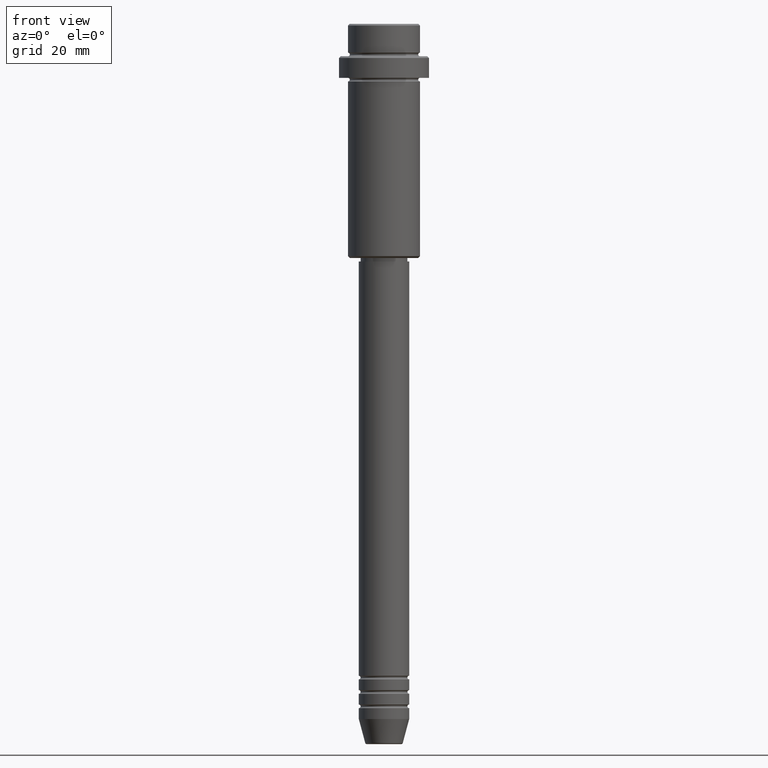
[diagram: clean part render]
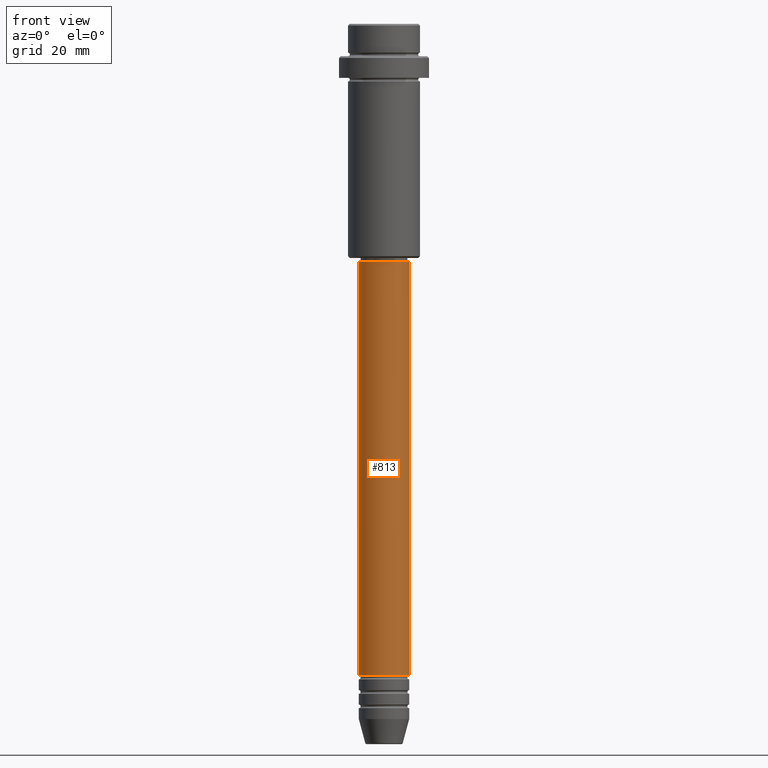
[diagram: same view with one face highlighted and labeled with its STEP entity id]
A machine part, front view. The second image highlights one B-rep face of the part: STEP entity #813.
In plain terms, the highlighted cylindrical surface (edge-blend (fillet) strip) has radius 7 mm, axis along (-0, -0, 1).
Its self-contained STEP definition (entity closure, byte-faithful):
#54 = VERTEX_POINT ( 'NONE', #281 ) ;
#79 = LINE ( 'NONE', #83, #200 ) ;
#83 = CARTESIAN_POINT ( 'NONE',  ( 7.000000000000000000, 0.000000000000000000, 0.000000000000000000 ) ) ;
#122 = VERTEX_POINT ( 'NONE', #771 ) ;
#154 = CARTESIAN_POINT ( 'NONE',  ( 0.000000000000000000, 0.000000000000000000, 0.000000000000000000 ) ) ;
#157 = CIRCLE ( 'NONE', #1082, 7.000000000000000000 ) ;
#200 = VECTOR ( 'NONE', #291, 1000.000000000000000 ) ;
#211 = ORIENTED_EDGE ( 'NONE', *, *, #630, .F. ) ;
#223 = CARTESIAN_POINT ( 'NONE',  ( 7.000000000000000000, 0.000000000000000000, -66.00000000000000000 ) ) ;
#235 = DIRECTION ( 'NONE',  ( 1.000000000000000000, 0.000000000000000000, 0.000000000000000000 ) ) ;
#279 = DIRECTION ( 'NONE',  ( 1.000000000000000000, 0.000000000000000000, 0.000000000000000000 ) ) ;
#281 = CARTESIAN_POINT ( 'NONE',  ( -7.000000000000000000, 8.572527594031473190E-16, -180.9999999999998863 ) ) ;
#291 = DIRECTION ( 'NONE',  ( -0.000000000000000000, -0.000000000000000000, 1.000000000000000000 ) ) ;
#318 = AXIS2_PLACEMENT_3D ( 'NONE', #154, #1009, #596 ) ;
#364 = DIRECTION ( 'NONE',  ( -0.000000000000000000, -0.000000000000000000, 1.000000000000000000 ) ) ;
#383 = CARTESIAN_POINT ( 'NONE',  ( 0.000000000000000000, 0.000000000000000000, -180.9999999999998863 ) ) ;
#429 = CARTESIAN_POINT ( 'NONE',  ( -7.000000000000000000, 8.572527594031473190E-16, 0.000000000000000000 ) ) ;
#434 = AXIS2_PLACEMENT_3D ( 'NONE', #383, #1268, #279 ) ;
#449 = EDGE_CURVE ( 'NONE', #1139, #1087, #79, .T. ) ;
#529 = CIRCLE ( 'NONE', #434, 7.000000000000000000 ) ;
#539 = LINE ( 'NONE', #429, #730 ) ;
#596 = DIRECTION ( 'NONE',  ( 1.000000000000000000, 0.000000000000000000, 0.000000000000000000 ) ) ;
#630 = EDGE_CURVE ( 'NONE', #54, #122, #539, .T. ) ;
#706 = CYLINDRICAL_SURFACE ( 'NONE', #318, 7.000000000000000000 ) ;
#730 = VECTOR ( 'NONE', #1098, 1000.000000000000000 ) ;
#771 = CARTESIAN_POINT ( 'NONE',  ( -7.000000000000000000, 8.572527594031473190E-16, -66.00000000000000000 ) ) ;
#788 = EDGE_CURVE ( 'NONE', #122, #1087, #157, .T. ) ;
#813 = ADVANCED_FACE ( 'NONE', ( #1140 ), #706, .T. ) ;
#878 = ORIENTED_EDGE ( 'NONE', *, *, #928, .T. ) ;
#928 = EDGE_CURVE ( 'NONE', #54, #1139, #529, .T. ) ;
#1009 = DIRECTION ( 'NONE',  ( -0.000000000000000000, -0.000000000000000000, 1.000000000000000000 ) ) ;
#1043 = CARTESIAN_POINT ( 'NONE',  ( 0.000000000000000000, 0.000000000000000000, -66.00000000000000000 ) ) ;
#1082 = AXIS2_PLACEMENT_3D ( 'NONE', #1043, #364, #235 ) ;
#1087 = VERTEX_POINT ( 'NONE', #223 ) ;
#1098 = DIRECTION ( 'NONE',  ( -0.000000000000000000, -0.000000000000000000, 1.000000000000000000 ) ) ;
#1139 = VERTEX_POINT ( 'NONE', #1181 ) ;
#1140 = FACE_OUTER_BOUND ( 'NONE', #1161, .T. ) ;
#1161 = EDGE_LOOP ( 'NONE', ( #211, #878, #1349, #1238 ) ) ;
#1181 = CARTESIAN_POINT ( 'NONE',  ( 7.000000000000000000, 0.000000000000000000, -180.9999999999998863 ) ) ;
#1238 = ORIENTED_EDGE ( 'NONE', *, *, #788, .F. ) ;
#1268 = DIRECTION ( 'NONE',  ( -0.000000000000000000, -0.000000000000000000, 1.000000000000000000 ) ) ;
#1349 = ORIENTED_EDGE ( 'NONE', *, *, #449, .T. ) ;